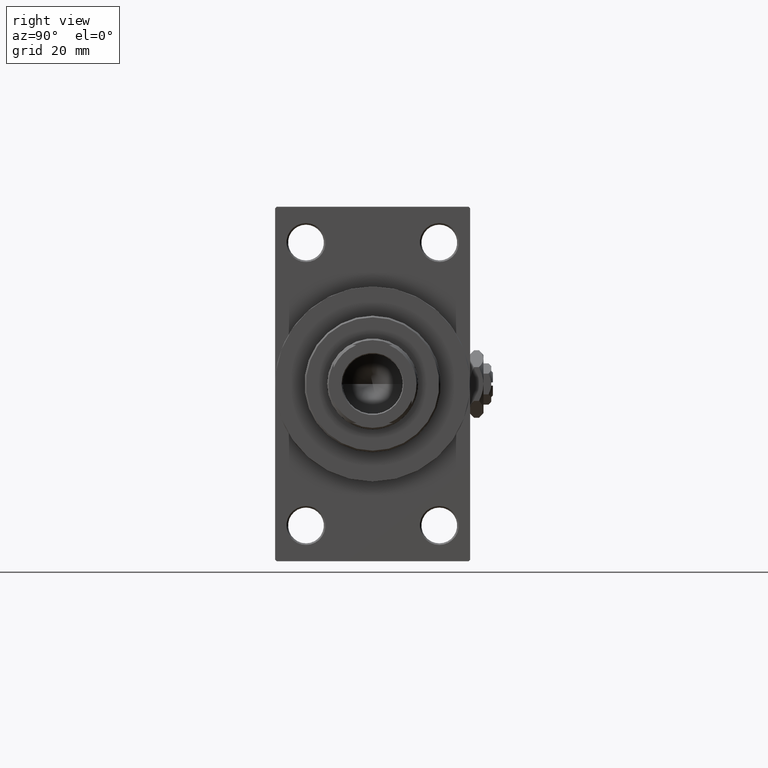
[diagram: clean part render]
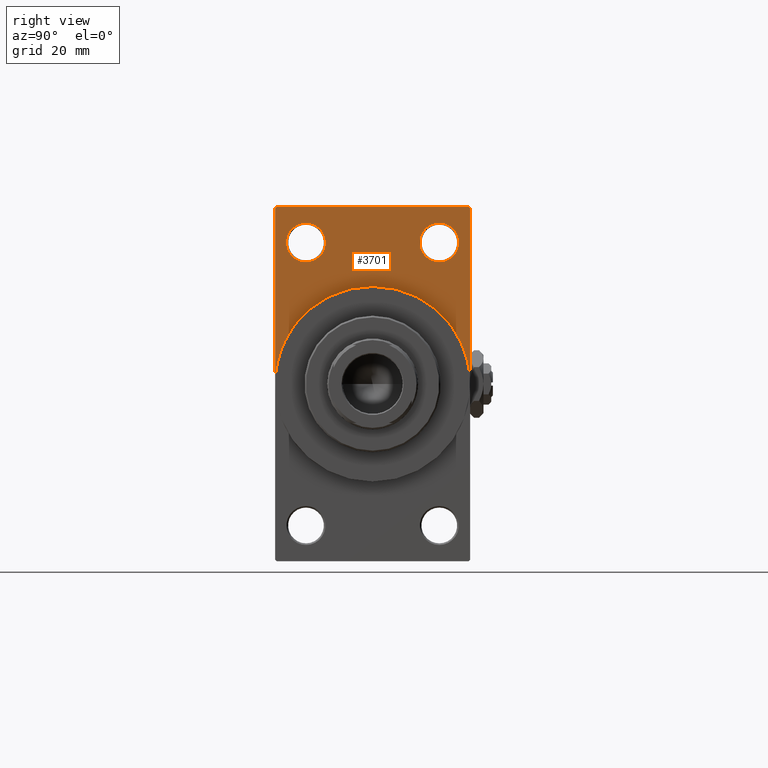
[diagram: same view with one face highlighted and labeled with its STEP entity id]
A machine part, right view. The second image highlights one B-rep face of the part: STEP entity #3701.
In plain terms, the highlighted planar face has unit normal (-1, 0, 0).
Its self-contained STEP definition (entity closure, byte-faithful):
#40 = CARTESIAN_POINT ( 'NONE',  ( 138.0000000000000000, 29.50000000000002132, 54.49999999999999289 ) ) ;
#2473 = VERTEX_POINT ( 'NONE', #14516 ) ;
#2721 = CARTESIAN_POINT ( 'NONE',  ( 138.0000000000000000, 0.000000000000000000, 0.000000000000000000 ) ) ;
#2846 = CARTESIAN_POINT ( 'NONE',  ( 138.0000000000000000, -20.50000000000000000, 49.50000000000008527 ) ) ;
#3514 = EDGE_CURVE ( 'NONE', #2473, #47734, #13713, .T. ) ;
#3701 = ADVANCED_FACE ( 'NONE', ( #42900, #25436, #13728 ), #41131, .F. ) ;
#3852 = ORIENTED_EDGE ( 'NONE', *, *, #17956, .T. ) ;
#3945 = AXIS2_PLACEMENT_3D ( 'NONE', #44305, #25122, #29101 ) ;
#4305 = ORIENTED_EDGE ( 'NONE', *, *, #38130, .F. ) ;
#5477 = VERTEX_POINT ( 'NONE', #39130 ) ;
#5485 = VERTEX_POINT ( 'NONE', #39382 ) ;
#5957 = AXIS2_PLACEMENT_3D ( 'NONE', #5998, #18446, #11207 ) ;
#5998 = CARTESIAN_POINT ( 'NONE',  ( 138.0000000000000000, -20.50000000000000000, 43.50000000000000000 ) ) ;
#7949 = DIRECTION ( 'NONE',  ( 0.000000000000000000, 0.000000000000000000, 1.000000000000000000 ) ) ;
#8119 = VECTOR ( 'NONE', #23398, 1000.000000000000000 ) ;
#8199 = CARTESIAN_POINT ( 'NONE',  ( 138.0000000000000000, 29.99999999999999645, 54.49999999999999289 ) ) ;
#9142 = CIRCLE ( 'NONE', #21892, 30.00000000000000000 ) ;
#9383 = LINE ( 'NONE', #28800, #22454 ) ;
#9520 = CARTESIAN_POINT ( 'NONE',  ( 138.0000000000000000, -20.50000000000000000, 43.50000000000000000 ) ) ;
#9736 = DIRECTION ( 'NONE',  ( -0.000000000000000000, -0.7071067811865451302, -0.7071067811865500152 ) ) ;
#11207 = DIRECTION ( 'NONE',  ( 0.000000000000000000, 0.000000000000000000, 1.000000000000000000 ) ) ;
#12006 = DIRECTION ( 'NONE',  ( 0.000000000000000000, 0.000000000000000000, 1.000000000000000000 ) ) ;
#12602 = EDGE_CURVE ( 'NONE', #5477, #45612, #9142, .T. ) ;
#13489 = CARTESIAN_POINT ( 'NONE',  ( 138.0000000000000000, 29.99999999999999645, 53.99999999999999289 ) ) ;
#13713 = CIRCLE ( 'NONE', #35967, 6.000000000000088818 ) ;
#13728 = FACE_OUTER_BOUND ( 'NONE', #38874, .T. ) ;
#13732 = DIRECTION ( 'NONE',  ( 0.000000000000000000, 0.000000000000000000, -1.000000000000000000 ) ) ;
#14105 = ORIENTED_EDGE ( 'NONE', *, *, #38982, .T. ) ;
#14213 = CIRCLE ( 'NONE', #22180, 6.000000000000088818 ) ;
#14469 = DIRECTION ( 'NONE',  ( -0.000000000000000000, 0.000000000000000000, 1.000000000000000000 ) ) ;
#14516 = CARTESIAN_POINT ( 'NONE',  ( 138.0000000000000000, 20.50000000000000000, 37.49999999999990763 ) ) ;
#14916 = DIRECTION ( 'NONE',  ( 0.000000000000000000, 0.000000000000000000, -1.000000000000000000 ) ) ;
#15207 = ORIENTED_EDGE ( 'NONE', *, *, #41362, .F. ) ;
#16431 = EDGE_CURVE ( 'NONE', #38792, #46674, #27636, .T. ) ;
#16936 = VERTEX_POINT ( 'NONE', #29042 ) ;
#16969 = CARTESIAN_POINT ( 'NONE',  ( 138.0000000000000000, -30.00000000000000000, 53.99999999999997158 ) ) ;
#17229 = LINE ( 'NONE', #24938, #49129 ) ;
#17956 = EDGE_CURVE ( 'NONE', #39866, #38792, #9383, .T. ) ;
#18194 = ORIENTED_EDGE ( 'NONE', *, *, #12602, .F. ) ;
#18446 = DIRECTION ( 'NONE',  ( -1.000000000000000000, 0.000000000000000000, -0.000000000000000000 ) ) ;
#21185 = ORIENTED_EDGE ( 'NONE', *, *, #3514, .T. ) ;
#21892 = AXIS2_PLACEMENT_3D ( 'NONE', #2721, #29624, #14916 ) ;
#22180 = AXIS2_PLACEMENT_3D ( 'NONE', #9520, #47645, #46672 ) ;
#22454 = VECTOR ( 'NONE', #35281, 1000.000000000000000 ) ;
#23398 = DIRECTION ( 'NONE',  ( 0.000000000000000000, -1.000000000000000000, 1.156482317317871478E-16 ) ) ;
#24938 = CARTESIAN_POINT ( 'NONE',  ( 138.0000000000000000, -30.00000000000000000, 54.50000000000000000 ) ) ;
#25089 = DIRECTION ( 'NONE',  ( 0.000000000000000000, 0.000000000000000000, -1.000000000000000000 ) ) ;
#25122 = DIRECTION ( 'NONE',  ( 1.000000000000000000, 0.000000000000000000, 0.000000000000000000 ) ) ;
#25436 = FACE_BOUND ( 'NONE', #39781, .T. ) ;
#26504 = CARTESIAN_POINT ( 'NONE',  ( 138.0000000000000000, 20.50000000000000000, 49.50000000000008527 ) ) ;
#26745 = AXIS2_PLACEMENT_3D ( 'NONE', #42081, #46328, #7949 ) ;
#26915 = ORIENTED_EDGE ( 'NONE', *, *, #45176, .T. ) ;
#27214 = AXIS2_PLACEMENT_3D ( 'NONE', #40390, #32888, #14469 ) ;
#27636 = LINE ( 'NONE', #8199, #8119 ) ;
#27836 = CARTESIAN_POINT ( 'NONE',  ( 138.0000000000000000, 29.99999999999999645, 54.49999999999999289 ) ) ;
#28324 = LINE ( 'NONE', #27836, #31746 ) ;
#28800 = CARTESIAN_POINT ( 'NONE',  ( 138.0000000000000000, 29.50000000000002132, 54.49999999999999289 ) ) ;
#29042 = CARTESIAN_POINT ( 'NONE',  ( 138.0000000000000000, -30.00000000000000000, 0.000000000000000000 ) ) ;
#29101 = DIRECTION ( 'NONE',  ( 0.000000000000000000, 0.000000000000000000, -1.000000000000000000 ) ) ;
#29146 = CIRCLE ( 'NONE', #26745, 6.000000000000088818 ) ;
#29624 = DIRECTION ( 'NONE',  ( 1.000000000000000000, 0.000000000000000000, 0.000000000000000000 ) ) ;
#30455 = EDGE_CURVE ( 'NONE', #47734, #2473, #29146, .T. ) ;
#30595 = ORIENTED_EDGE ( 'NONE', *, *, #16431, .T. ) ;
#31746 = VECTOR ( 'NONE', #25089, 1000.000000000000000 ) ;
#32663 = ORIENTED_EDGE ( 'NONE', *, *, #36614, .T. ) ;
#32832 = EDGE_CURVE ( 'NONE', #5485, #16936, #17229, .T. ) ;
#32888 = DIRECTION ( 'NONE',  ( -1.000000000000000000, 0.000000000000000000, -0.000000000000000000 ) ) ;
#33720 = VERTEX_POINT ( 'NONE', #39848 ) ;
#34988 = VECTOR ( 'NONE', #9736, 1000.000000000000114 ) ;
#35281 = DIRECTION ( 'NONE',  ( 0.000000000000000000, -0.7071067811865279218, 0.7071067811865671127 ) ) ;
#35967 = AXIS2_PLACEMENT_3D ( 'NONE', #45640, #46152, #12006 ) ;
#36614 = EDGE_CURVE ( 'NONE', #33720, #41622, #14213, .T. ) ;
#36637 = LINE ( 'NONE', #16969, #34988 ) ;
#38130 = EDGE_CURVE ( 'NONE', #45612, #16936, #41344, .T. ) ;
#38792 = VERTEX_POINT ( 'NONE', #40 ) ;
#38874 = EDGE_LOOP ( 'NONE', ( #30595, #14105, #44009, #4305, #18194, #15207, #3852 ) ) ;
#38982 = EDGE_CURVE ( 'NONE', #46674, #5485, #36637, .T. ) ;
#39130 = CARTESIAN_POINT ( 'NONE',  ( 138.0000000000000000, 30.00000000000000000, 0.000000000000000000 ) ) ;
#39366 = ORIENTED_EDGE ( 'NONE', *, *, #30455, .T. ) ;
#39382 = CARTESIAN_POINT ( 'NONE',  ( 138.0000000000000000, -30.00000000000000000, 53.99999999999997158 ) ) ;
#39394 = CIRCLE ( 'NONE', #5957, 6.000000000000088818 ) ;
#39781 = EDGE_LOOP ( 'NONE', ( #21185, #39366 ) ) ;
#39848 = CARTESIAN_POINT ( 'NONE',  ( 138.0000000000000000, -20.50000000000000000, 37.49999999999990763 ) ) ;
#39866 = VERTEX_POINT ( 'NONE', #13489 ) ;
#40390 = CARTESIAN_POINT ( 'NONE',  ( 138.0000000000000000, 0.000000000000000000, 0.000000000000000000 ) ) ;
#40678 = CARTESIAN_POINT ( 'NONE',  ( 138.0000000000000000, -29.49999999999997513, 54.50000000000000000 ) ) ;
#41131 = PLANE ( 'NONE',  #27214 ) ;
#41344 = CIRCLE ( 'NONE', #3945, 30.00000000000000000 ) ;
#41362 = EDGE_CURVE ( 'NONE', #39866, #5477, #28324, .T. ) ;
#41622 = VERTEX_POINT ( 'NONE', #2846 ) ;
#42081 = CARTESIAN_POINT ( 'NONE',  ( 138.0000000000000000, 20.50000000000000000, 43.50000000000000000 ) ) ;
#42900 = FACE_BOUND ( 'NONE', #44909, .T. ) ;
#44009 = ORIENTED_EDGE ( 'NONE', *, *, #32832, .T. ) ;
#44305 = CARTESIAN_POINT ( 'NONE',  ( 138.0000000000000000, 0.000000000000000000, 0.000000000000000000 ) ) ;
#44909 = EDGE_LOOP ( 'NONE', ( #32663, #26915 ) ) ;
#45176 = EDGE_CURVE ( 'NONE', #41622, #33720, #39394, .T. ) ;
#45612 = VERTEX_POINT ( 'NONE', #46449 ) ;
#45640 = CARTESIAN_POINT ( 'NONE',  ( 138.0000000000000000, 20.50000000000000000, 43.50000000000000000 ) ) ;
#46152 = DIRECTION ( 'NONE',  ( -1.000000000000000000, 0.000000000000000000, -0.000000000000000000 ) ) ;
#46328 = DIRECTION ( 'NONE',  ( -1.000000000000000000, 0.000000000000000000, -0.000000000000000000 ) ) ;
#46449 = CARTESIAN_POINT ( 'NONE',  ( 138.0000000000000000, 0.000000000000000000, 30.00000000000000000 ) ) ;
#46672 = DIRECTION ( 'NONE',  ( 0.000000000000000000, 0.000000000000000000, 1.000000000000000000 ) ) ;
#46674 = VERTEX_POINT ( 'NONE', #40678 ) ;
#47645 = DIRECTION ( 'NONE',  ( -1.000000000000000000, 0.000000000000000000, -0.000000000000000000 ) ) ;
#47734 = VERTEX_POINT ( 'NONE', #26504 ) ;
#49129 = VECTOR ( 'NONE', #13732, 1000.000000000000000 ) ;